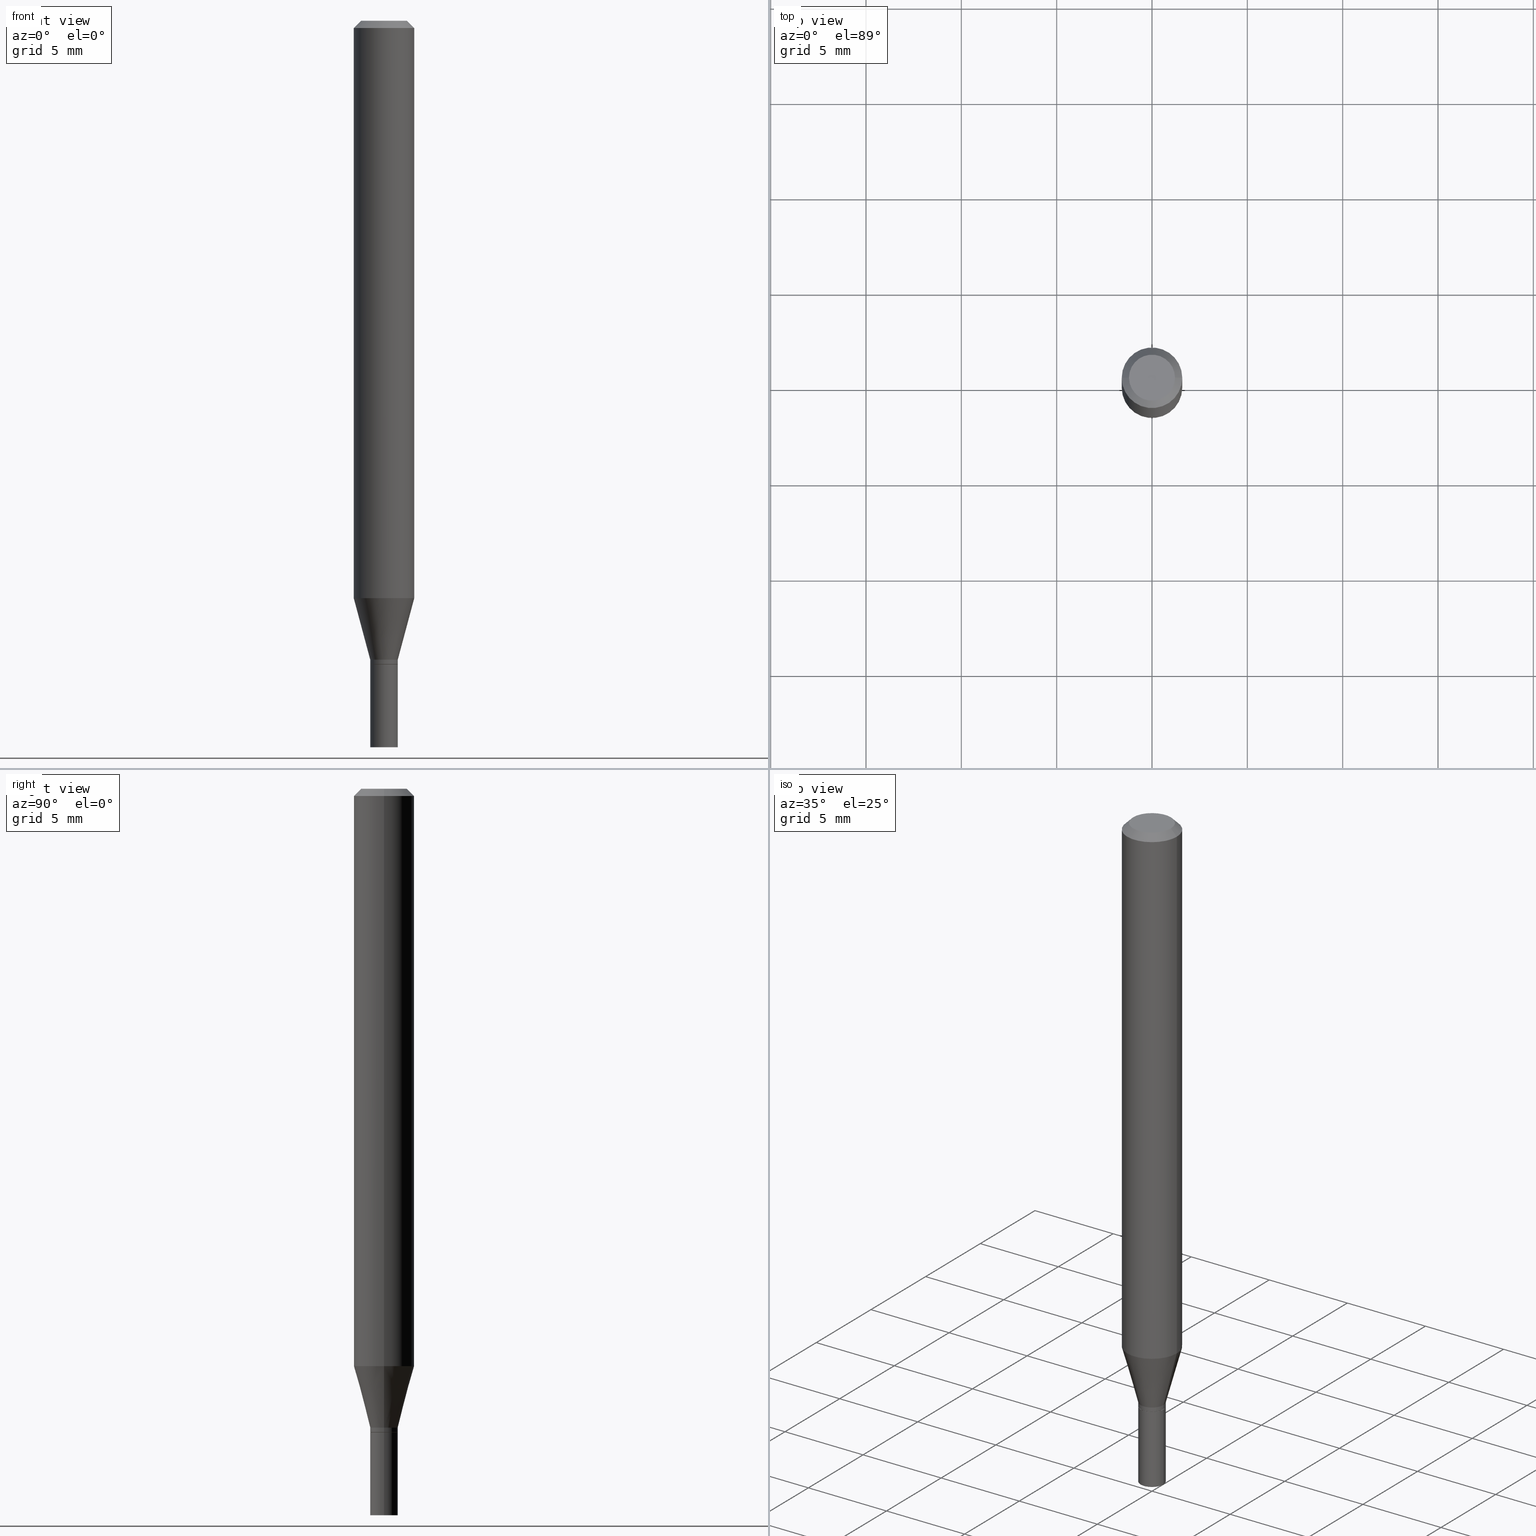
[diagram: canonical four-view strip — front | top / right | iso, engineering-drawing reading convention]
A machine part, canonical four-view strip (front | top / right | iso — engineering-drawing reading convention). The complete STEP part file that produces these views, byte-faithful:
ISO-10303-21;
HEADER;
FILE_DESCRIPTION (( 'STEP AP203' ),
    '1' );
FILE_NAME ('02452.STEP',
    '2024-03-18T20:40:53',
    ( '' ),
    ( '' ),
    'SwSTEP 2.0',
    'SolidWorks 2023',
    '' );
FILE_SCHEMA (( 'CONFIG_CONTROL_DESIGN' ));
ENDSEC;

DATA;
#1 = EDGE_LOOP ( 'NONE', ( #340, #38, #244, #93 ) ) ;
#2 = EDGE_LOOP ( 'NONE', ( #133, #55, #102, #368 ) ) ;
#3 = CYLINDRICAL_SURFACE ( 'NONE', #194, 0.06250000000000000000 ) ;
#4 = AXIS2_PLACEMENT_3D ( 'NONE', #408, #331, #13 ) ;
#5 = ADVANCED_FACE ( 'NONE', ( #286 ), #433, .T. ) ;
#6 = ORIENTED_EDGE ( 'NONE', *, *, #372, .T. ) ;
#7 = VERTEX_POINT ( 'NONE', #51 ) ;
#8 = FACE_OUTER_BOUND ( 'NONE', #108, .T. ) ;
#9 = LINE ( 'NONE', #118, #135 ) ;
#10 = COORDINATED_UNIVERSAL_TIME_OFFSET ( 5, 0, .BEHIND. ) ;
#11 = VECTOR ( 'NONE', #258, 39.37007874015748854 ) ;
#12 = CARTESIAN_POINT ( 'NONE',  ( 3.316907271900976096E-16, 0.04749999999999999362, -2.904368096790510281E-16 ) ) ;
#13 = DIRECTION ( 'NONE',  ( 1.000000000000000000, -6.982962677686265922E-15, 0.000000000000000000 ) ) ;
#14 = CARTESIAN_POINT ( 'NONE',  ( 3.668203209277705088E-31, -5.237222008264718399E-17, -0.01499999999999999944 ) ) ;
#15 = EDGE_CURVE ( 'NONE', #273, #69, #81, .T. ) ;
#16 = DIRECTION ( 'NONE',  ( 1.000000000000000000, -6.982962677686265922E-15, 4.876176775795935793E-29 ) ) ;
#17 = EDGE_LOOP ( 'NONE', ( #357, #143, #183, #400 ) ) ;
#18 = PERSON_AND_ORGANIZATION_ROLE ( 'design_supplier' ) ;
#19 = AXIS2_PLACEMENT_3D ( 'NONE', #334, #385, #307 ) ;
#20 = ORIENTED_EDGE ( 'NONE', *, *, #453, .F. ) ;
#21 = APPROVAL_STATUS ( 'not_yet_approved' ) ;
#22 = APPLICATION_PROTOCOL_DEFINITION ( 'international standard', 'config_control_design', 1994, #140 ) ;
#23 = DIRECTION ( 'NONE',  ( -2.445468806185136597E-29, 3.491481338843145583E-15, 1.000000000000000000 ) ) ;
#24 = APPLICATION_PROTOCOL_DEFINITION ( 'international standard', 'config_control_design', 1994, #63 ) ;
#25 = ORIENTED_EDGE ( 'NONE', *, *, #57, .T. ) ;
#26 = DIRECTION ( 'NONE',  ( -1.000000000000000000, 6.982962677686266711E-15, 0.000000000000000000 ) ) ;
#27 = DATE_AND_TIME ( #384, #367 ) ;
#28 = DIRECTION ( 'NONE',  ( 1.000000000000000000, -6.982962677686280910E-15, 0.000000000000000000 ) ) ;
#29 = VECTOR ( 'NONE', #168, 39.37007874015748143 ) ;
#30 = ORIENTED_EDGE ( 'NONE', *, *, #77, .T. ) ;
#31 = DIRECTION ( 'NONE',  ( 2.445468806185136597E-29, -3.491481338843145583E-15, -1.000000000000000000 ) ) ;
#32 = PERSON_AND_ORGANIZATION ( #42, #218 ) ;
#33 = ORIENTED_EDGE ( 'NONE', *, *, #313, .F. ) ;
#34 = DIRECTION ( 'NONE',  ( -2.445468806185136877E-29, 3.491481338843145188E-15, 1.000000000000000000 ) ) ;
#35 = ADVANCED_FACE ( 'NONE', ( #371 ), #425, .T. ) ;
#36 = EDGE_LOOP ( 'NONE', ( #64, #321, #68, #173 ) ) ;
#37 = CARTESIAN_POINT ( 'NONE',  ( 0.000000000000000000, 0.000000000000000000, 0.000000000000000000 ) ) ;
#38 = ORIENTED_EDGE ( 'NONE', *, *, #253, .T. ) ;
#39 = CIRCLE ( 'NONE', #225, 0.02850000000000000103 ) ;
#40 = EDGE_LOOP ( 'NONE', ( #381, #320, #145, #33 ) ) ;
#41 = DIRECTION ( 'NONE',  ( -2.445468806185136597E-29, 3.491481338843145583E-15, 1.000000000000000000 ) ) ;
#42 = PERSON ( 'UNSPECIFIED', 'UNSPECIFIED', 'UNSPECIFIED', ('UNSPECIFIED'), ('UNSPECIFIED'), ('UNSPECIFIED') ) ;
#43 = PLANE ( 'NONE',  #262 ) ;
#44 = APPROVAL_ROLE ( '' ) ;
#45 = DIRECTION ( 'NONE',  ( -2.445468806185136597E-29, 3.491481338843145583E-15, 1.000000000000000000 ) ) ;
#46 = CONICAL_SURFACE ( 'NONE', #328, 0.06250000000000000000, 0.7853981633974567167 ) ;
#47 = VECTOR ( 'NONE', #377, 39.37007874015748143 ) ;
#48 = DIRECTION ( 'NONE',  ( -2.445468806185136597E-29, 3.491481338843145583E-15, 1.000000000000000000 ) ) ;
#49 = ADVANCED_FACE ( 'NONE', ( #186 ), #411, .F. ) ;
#50 = CARTESIAN_POINT ( 'NONE',  ( -0.06250000000000000000, -3.718141560575843830E-15, -1.192110272542658223 ) ) ;
#51 = CARTESIAN_POINT ( 'NONE',  ( 0.02850000000000000103, -5.436236444578777472E-15, -1.500000000000000222 ) ) ;
#52 = AXIS2_PLACEMENT_3D ( 'NONE', #193, #414, #374 ) ;
#53 = DIRECTION ( 'NONE',  ( -2.445468806185136877E-29, 3.491481338843145188E-15, 1.000000000000000000 ) ) ;
#54 = CARTESIAN_POINT ( 'NONE',  ( 0.02799999999999999711, -4.835701654297756579E-15, -1.329000000000000181 ) ) ;
#55 = ORIENTED_EDGE ( 'NONE', *, *, #301, .T. ) ;
#56 = PERSON_AND_ORGANIZATION_ROLE ( 'creator' ) ;
#57 = EDGE_CURVE ( 'NONE', #251, #212, #412, .T. ) ;
#58 = AXIS2_PLACEMENT_3D ( 'NONE', #14, #224, #123 ) ;
#59 = CIRCLE ( 'NONE', #120, 0.02849999999999991776 ) ;
#60 = ORIENTED_EDGE ( 'NONE', *, *, #175, .F. ) ;
#61 = DIRECTION ( 'NONE',  ( 1.000000000000000000, -6.982962677686265922E-15, 4.876176775795935232E-29 ) ) ;
#62 = CARTESIAN_POINT ( 'NONE',  ( 3.250028043420046945E-29, -4.640178699322541079E-15, -1.329000000000000181 ) ) ;
#63 = APPLICATION_CONTEXT ( 'configuration controlled 3d designs of mechanical parts and assemblies' ) ;
#64 = ORIENTED_EDGE ( 'NONE', *, *, #267, .F. ) ;
#65 = CARTESIAN_POINT ( 'NONE',  ( 1.990144363140910964E-16, 0.02849999999999535891, -1.329000000000000181 ) ) ;
#66 = DIRECTION ( 'NONE',  ( -2.445468806185136597E-29, 3.491481338843145583E-15, 1.000000000000000000 ) ) ;
#67 = EDGE_CURVE ( 'NONE', #249, #426, #287, .T. ) ;
#68 = ORIENTED_EDGE ( 'NONE', *, *, #154, .T. ) ;
#69 = VERTEX_POINT ( 'NONE', #305 ) ;
#70 = CARTESIAN_POINT ( 'NONE',  ( 0.02849999999999991776, -4.804278322248167148E-15, -1.318999999999999950 ) ) ;
#71 = ORIENTED_EDGE ( 'NONE', *, *, #410, .F. ) ;
#72 = DIRECTION ( 'NONE',  ( -2.445468806185136597E-29, 3.491481338843145583E-15, 1.000000000000000000 ) ) ;
#73 = ORIENTED_EDGE ( 'NONE', *, *, #248, .T. ) ;
#74 = AXIS2_PLACEMENT_3D ( 'NONE', #152, #156, #78 ) ;
#75 = LENGTH_MEASURE_WITH_UNIT ( LENGTH_MEASURE( 0.02539999999999999897 ), #184 );
#76 = AXIS2_PLACEMENT_3D ( 'NONE', #99, #403, #147 ) ;
#77 = EDGE_CURVE ( 'NONE', #212, #251, #246, .T. ) ;
#78 = DIRECTION ( 'NONE',  ( 1.000000000000000000, -6.982962677686268288E-15, 0.000000000000000000 ) ) ;
#79 = DIRECTION ( 'NONE',  ( -2.445468806185136877E-29, 3.491481338843145188E-15, 1.000000000000000000 ) ) ;
#80 = FACE_OUTER_BOUND ( 'NONE', #17, .T. ) ;
#81 = CIRCLE ( 'NONE', #52, 0.02850000000000000103 ) ;
#82 = AXIS2_PLACEMENT_3D ( 'NONE', #197, #91, #89 ) ;
#83 = CARTESIAN_POINT ( 'NONE',  ( 3.225573355358195400E-29, -4.605263885934108641E-15, -1.318999999999999950 ) ) ;
#84 = DIRECTION ( 'NONE',  ( -2.445468806185136597E-29, 3.491481338843145583E-15, 1.000000000000000000 ) ) ;
#85 = DATE_AND_TIME ( #300, #227 ) ;
#86 = AXIS2_PLACEMENT_3D ( 'NONE', #132, #72, #303 ) ;
#87 = AXIS2_PLACEMENT_3D ( 'NONE', #424, #369, #463 ) ;
#88 = PRODUCT_RELATED_PRODUCT_CATEGORY ( 'detail', '', ( #341 ) ) ;
#89 = DIRECTION ( 'NONE',  ( 1.000000000000000000, -6.982962677686267499E-15, 4.852736867747366768E-29 ) ) ;
#90 = ORIENTED_EDGE ( 'NONE', *, *, #214, .T. ) ;
#91 = DIRECTION ( 'NONE',  ( -2.445468806185136597E-29, 3.491481338843145583E-15, 1.000000000000000000 ) ) ;
#92 = EDGE_CURVE ( 'NONE', #324, #429, #293, .T. ) ;
#93 = ORIENTED_EDGE ( 'NONE', *, *, #375, .F. ) ;
#94 = PERSON_AND_ORGANIZATION ( #42, #218 ) ;
#95 = EDGE_CURVE ( 'NONE', #275, #397, #435, .T. ) ;
#96 = LOCAL_TIME ( 16, 40, 53.00000000000000000, #274 ) ;
#97 = DIRECTION ( 'NONE',  ( -2.445468806185136597E-29, 3.491481338843145583E-15, 1.000000000000000000 ) ) ;
#98 = ADVANCED_FACE ( 'NONE', ( #407 ), #208, .T. ) ;
#99 = CARTESIAN_POINT ( 'NONE',  ( 3.668203209277705088E-31, -5.237222008264718399E-17, -0.01499999999999999944 ) ) ;
#100 = CARTESIAN_POINT ( 'NONE',  ( -0.02850000000000000103, 2.025046796916285603E-16, -1.401896500722648086E-30 ) ) ;
#101 = DIRECTION ( 'NONE',  ( 1.000000000000000000, -6.982962677686264344E-15, 0.000000000000000000 ) ) ;
#102 = ORIENTED_EDGE ( 'NONE', *, *, #15, .F. ) ;
#103 = CARTESIAN_POINT ( 'NONE',  ( 3.225573355358195400E-29, -4.605263885934108641E-15, -1.318999999999999950 ) ) ;
#104 = ADVANCED_FACE ( 'NONE', ( #80 ), #46, .T. ) ;
#105 = VECTOR ( 'NONE', #204, 39.37007874015748143 ) ;
#106 = CARTESIAN_POINT ( 'NONE',  ( 0.000000000000000000, 0.000000000000000000, 0.000000000000000000 ) ) ;
#107 = LINE ( 'NONE', #242, #105 ) ;
#108 = EDGE_LOOP ( 'NONE', ( #343, #290, #131, #139 ) ) ;
#109 = EDGE_LOOP ( 'NONE', ( #423, #317 ) ) ;
#110 = SHAPE_DEFINITION_REPRESENTATION ( #122, #222 ) ;
#111 = DIRECTION ( 'NONE',  ( 1.000000000000000000, -6.982962677686264344E-15, 0.000000000000000000 ) ) ;
#112 = ADVANCED_FACE ( 'NONE', ( #370 ), #43, .F. ) ;
#113 = ORIENTED_EDGE ( 'NONE', *, *, #313, .T. ) ;
#114 = CONICAL_SURFACE ( 'NONE', #373, 0.06250000000000000000, 0.7853981633974567167 ) ;
#115 = FACE_OUTER_BOUND ( 'NONE', #1, .T. ) ;
#116 = LINE ( 'NONE', #376, #11 ) ;
#117 = CARTESIAN_POINT ( 'NONE',  ( 0.06250000000000000000, -4.888073874380388472E-16, -0.01499999999999999944 ) ) ;
#118 = CARTESIAN_POINT ( 'NONE',  ( -0.06250000000000000000, 3.840629472727444916E-16, -0.01499999999999999944 ) ) ;
#119 = VECTOR ( 'NONE', #79, 39.37007874015748143 ) ;
#120 = AXIS2_PLACEMENT_3D ( 'NONE', #103, #245, #174 ) ;
#121 = DIRECTION ( 'NONE',  ( 0.7071067811865656694, -2.468850131082446387E-15, 0.7071067811865294761 ) ) ;
#122 = PRODUCT_DEFINITION_SHAPE ( 'NONE', 'NONE',  #417 ) ;
#123 = DIRECTION ( 'NONE',  ( 1.000000000000000000, -6.982962677686266711E-15, 0.000000000000000000 ) ) ;
#124 = CARTESIAN_POINT ( 'NONE',  ( 3.250028043420046945E-29, -4.640178699322541079E-15, -1.329000000000000181 ) ) ;
#125 = LINE ( 'NONE', #157, #315 ) ;
#126 = FACE_OUTER_BOUND ( 'NONE', #109, .T. ) ;
#127 = AXIS2_PLACEMENT_3D ( 'NONE', #388, #23, #136 ) ;
#128 = CC_DESIGN_SECURITY_CLASSIFICATION ( #405, ( #309 ) ) ;
#129 = ORIENTED_EDGE ( 'NONE', *, *, #410, .T. ) ;
#130 = DATE_AND_TIME ( #200, #180 ) ;
#131 = ORIENTED_EDGE ( 'NONE', *, *, #375, .T. ) ;
#132 = CARTESIAN_POINT ( 'NONE',  ( 0.000000000000000000, 0.000000000000000000, 0.000000000000000000 ) ) ;
#133 = ORIENTED_EDGE ( 'NONE', *, *, #442, .T. ) ;
#134 = PERSON_AND_ORGANIZATION_ROLE ( 'classification_officer' ) ;
#135 = VECTOR ( 'NONE', #261, 39.37007874015748143 ) ;
#136 = DIRECTION ( 'NONE',  ( 1.000000000000000000, -6.982962677686265922E-15, 0.000000000000000000 ) ) ;
#137 = VERTEX_POINT ( 'NONE', #445 ) ;
#138 = DIRECTION ( 'NONE',  ( -2.445468806185136597E-29, 3.491481338843145583E-15, 1.000000000000000000 ) ) ;
#139 = ORIENTED_EDGE ( 'NONE', *, *, #298, .F. ) ;
#140 = APPLICATION_CONTEXT ( 'configuration controlled 3d designs of mechanical parts and assemblies' ) ;
#141 = EDGE_CURVE ( 'NONE', #146, #431, #179, .T. ) ;
#142 = AXIS2_PLACEMENT_3D ( 'NONE', #276, #360, #203 ) ;
#143 = ORIENTED_EDGE ( 'NONE', *, *, #267, .T. ) ;
#144 = LINE ( 'NONE', #289, #380 ) ;
#145 = ORIENTED_EDGE ( 'NONE', *, *, #57, .F. ) ;
#146 = VERTEX_POINT ( 'NONE', #117 ) ;
#147 = DIRECTION ( 'NONE',  ( 1.000000000000000000, -6.982962677686266711E-15, 0.000000000000000000 ) ) ;
#148 = CARTESIAN_POINT ( 'NONE',  ( 3.225573355358195400E-29, -4.605263885934108641E-15, -1.318999999999999950 ) ) ;
#149 = AXIS2_PLACEMENT_3D ( 'NONE', #37, #211, #311 ) ;
#150 = AXIS2_PLACEMENT_3D ( 'NONE', #339, #454, #161 ) ;
#151 = APPROVAL_DATE_TIME ( #85, #230 ) ;
#152 = CARTESIAN_POINT ( 'NONE',  ( 3.225573355358195400E-29, -4.605263885934108641E-15, -1.318999999999999950 ) ) ;
#153 = PERSON_AND_ORGANIZATION_ROLE ( 'creator' ) ;
#154 = EDGE_CURVE ( 'NONE', #429, #431, #9, .T. ) ;
#155 = DIRECTION ( 'NONE',  ( 1.000000000000000000, -6.982962677686270655E-15, 0.000000000000000000 ) ) ;
#156 = DIRECTION ( 'NONE',  ( -2.445468806185136597E-29, 3.491481338843145583E-15, 1.000000000000000000 ) ) ;
#157 = CARTESIAN_POINT ( 'NONE',  ( 0.06250000000000000000, -4.364351673553916694E-16, 3.047610484872459871E-30 ) ) ;
#158 = LOCAL_TIME ( 16, 40, 53.00000000000000000, #310 ) ;
#159 = CARTESIAN_POINT ( 'NONE',  ( 2.915268485035931806E-29, -4.162230770425907235E-15, -1.192110272542658223 ) ) ;
#160 = CC_DESIGN_DATE_AND_TIME_ASSIGNMENT ( #130, #355, ( #417 ) ) ;
#161 = DIRECTION ( 'NONE',  ( 1.000000000000000000, -6.982962677686264344E-15, 0.000000000000000000 ) ) ;
#162 = ORIENTED_EDGE ( 'NONE', *, *, #92, .T. ) ;
#163 = AXIS2_PLACEMENT_3D ( 'NONE', #83, #48, #260 ) ;
#164 = CC_DESIGN_APPROVAL ( #350, ( #405 ) ) ;
#165 = APPROVAL_ROLE ( '' ) ;
#166 = CARTESIAN_POINT ( 'NONE',  ( 0.02849999999999992470, -1.990144363140580629E-16, 1.389710381101837840E-30 ) ) ;
#167 = PERSON_AND_ORGANIZATION ( #42, #218 ) ;
#168 = DIRECTION ( 'NONE',  ( -2.445468806185136877E-29, 3.491481338843145188E-15, 1.000000000000000000 ) ) ;
#169 = ORIENTED_EDGE ( 'NONE', *, *, #342, .F. ) ;
#170 = ORIENTED_EDGE ( 'NONE', *, *, #141, .F. ) ;
#171 = FACE_OUTER_BOUND ( 'NONE', #36, .T. ) ;
#172 = CYLINDRICAL_SURFACE ( 'NONE', #87, 0.02850000000000000103 ) ;
#173 = ORIENTED_EDGE ( 'NONE', *, *, #453, .T. ) ;
#174 = DIRECTION ( 'NONE',  ( 1.000000000000000000, -6.982962677686268288E-15, 0.000000000000000000 ) ) ;
#175 = EDGE_CURVE ( 'NONE', #254, #137, #308, .T. ) ;
#176 = FACE_OUTER_BOUND ( 'NONE', #235, .T. ) ;
#177 = ORIENTED_EDGE ( 'NONE', *, *, #77, .F. ) ;
#178 = FACE_OUTER_BOUND ( 'NONE', #219, .T. ) ;
#179 = CIRCLE ( 'NONE', #58, 0.06250000000000000000 ) ;
#180 = LOCAL_TIME ( 16, 40, 53.00000000000000000, #202 ) ;
#181 = ORIENTED_EDGE ( 'NONE', *, *, #95, .F. ) ;
#182 = EDGE_CURVE ( 'NONE', #137, #212, #116, .T. ) ;
#183 = ORIENTED_EDGE ( 'NONE', *, *, #141, .T. ) ;
#184 =( LENGTH_UNIT ( ) NAMED_UNIT ( * ) SI_UNIT ( $, .METRE. ) );
#185 = CARTESIAN_POINT ( 'NONE',  ( 2.915268485035931806E-29, -4.162230770425907235E-15, -1.192110272542658223 ) ) ;
#186 = FACE_OUTER_BOUND ( 'NONE', #210, .T. ) ;
#187 = DESIGN_CONTEXT ( 'detailed design', #63, 'design' ) ;
#188 = CIRCLE ( 'NONE', #82, 0.04749999999999999362 ) ;
#189 = APPROVAL ( #389, 'UNSPECIFIED' ) ;
#190 = CARTESIAN_POINT ( 'NONE',  ( 3.250028043420046945E-29, -4.640178699322541079E-15, -1.329000000000000181 ) ) ;
#191 = DIRECTION ( 'NONE',  ( -2.445468806185136597E-29, 3.491481338843145583E-15, 1.000000000000000000 ) ) ;
#192 = PLANE ( 'NONE',  #19 ) ;
#193 = CARTESIAN_POINT ( 'NONE',  ( 3.250028043420046945E-29, -4.640178699322541079E-15, -1.329000000000000181 ) ) ;
#194 = AXIS2_PLACEMENT_3D ( 'NONE', #314, #138, #207 ) ;
#195 = APPROVAL_PERSON_ORGANIZATION ( #167, #350, #165 ) ;
#196 = AXIS2_PLACEMENT_3D ( 'NONE', #394, #66, #101 ) ;
#197 = CARTESIAN_POINT ( 'NONE',  ( 6.093689898318465335E-45, -8.700174179635472181E-31, -2.491828921680032634E-16 ) ) ;
#198 = CC_DESIGN_PERSON_AND_ORGANIZATION_ASSIGNMENT ( #409, #153, ( #417 ) ) ;
#199 = PERSON_AND_ORGANIZATION ( #42, #218 ) ;
#200 = CALENDAR_DATE ( 2024, 18, 3 ) ;
#201 = CARTESIAN_POINT ( 'NONE',  ( 0.06250000000000000000, -4.811533449433679005E-16, -0.01499999999999999944 ) ) ;
#202 = COORDINATED_UNIVERSAL_TIME_OFFSET ( 5, 0, .BEHIND. ) ;
#203 = DIRECTION ( 'NONE',  ( 1.000000000000000000, 0.000000000000000000, 0.000000000000000000 ) ) ;
#204 = DIRECTION ( 'NONE',  ( -0.7071067811865656694, 7.493145998870420424E-15, 0.7071067811865294761 ) ) ;
#205 = MECHANICAL_CONTEXT ( 'NONE', #140, 'mechanical' ) ;
#206 = EDGE_LOOP ( 'NONE', ( #6, #162 ) ) ;
#207 = DIRECTION ( 'NONE',  ( 1.000000000000000000, -6.982962677686266711E-15, 4.876176775795935793E-29 ) ) ;
#208 = CONICAL_SURFACE ( 'NONE', #74, 0.02849999999999991776, 0.2617993877991499074 ) ;
#209 =( NAMED_UNIT ( * ) SI_UNIT ( $, .STERADIAN. ) SOLID_ANGLE_UNIT ( ) );
#210 = EDGE_LOOP ( 'NONE', ( #181, #439 ) ) ;
#211 = DIRECTION ( 'NONE',  ( -2.445468806185136597E-29, 3.491481338843145583E-15, 1.000000000000000000 ) ) ;
#212 = VERTEX_POINT ( 'NONE', #50 ) ;
#213 = FACE_OUTER_BOUND ( 'NONE', #215, .T. ) ;
#214 = EDGE_CURVE ( 'NONE', #426, #137, #333, .T. ) ;
#215 = EDGE_LOOP ( 'NONE', ( #25, #464, #170, #436 ) ) ;
#216 = CC_DESIGN_DATE_AND_TIME_ASSIGNMENT ( #27, #344, ( #405 ) ) ;
#217 = AXIS2_PLACEMENT_3D ( 'NONE', #159, #45, #299 ) ;
#218 = ORGANIZATION ( 'UNSPECIFIED', 'UNSPECIFIED', '' ) ;
#219 = EDGE_LOOP ( 'NONE', ( #438, #361, #238, #169 ) ) ;
#220 = DIRECTION ( 'NONE',  ( -2.445468806185136597E-29, 3.491481338843145583E-15, 1.000000000000000000 ) ) ;
#221 = CARTESIAN_POINT ( 'NONE',  ( 3.668203209277705088E-31, -5.237222008264718399E-17, -0.01499999999999999944 ) ) ;
#222 = ADVANCED_BREP_SHAPE_REPRESENTATION ( '02452', ( #450, #456, #142 ), #359 ) ;
#223 = CC_DESIGN_PERSON_AND_ORGANIZATION_ASSIGNMENT ( #199, #18, ( #309 ) ) ;
#224 = DIRECTION ( 'NONE',  ( -2.445468806185136597E-29, 3.491481338843145583E-15, 1.000000000000000000 ) ) ;
#225 = AXIS2_PLACEMENT_3D ( 'NONE', #229, #378, #352 ) ;
#226 = EDGE_CURVE ( 'NONE', #257, #7, #39, .T. ) ;
#227 = LOCAL_TIME ( 16, 40, 53.00000000000000000, #10 ) ;
#228 = DIRECTION ( 'NONE',  ( 1.000000000000000000, -6.982962677686264344E-15, 0.000000000000000000 ) ) ;
#229 = CARTESIAN_POINT ( 'NONE',  ( 3.668203209277704895E-29, -5.237222008264718177E-15, -1.500000000000000222 ) ) ;
#230 = APPROVAL ( #241, 'UNSPECIFIED' ) ;
#231 = EDGE_CURVE ( 'NONE', #7, #273, #416, .T. ) ;
#232 = CARTESIAN_POINT ( 'NONE',  ( -0.06250000000000000000, 4.440892098500626162E-16, -3.074334431409316114E-30 ) ) ;
#233 = AXIS2_PLACEMENT_3D ( 'NONE', #148, #295, #440 ) ;
#234 = CARTESIAN_POINT ( 'NONE',  ( 0.02850000000000000103, -1.990144363140586052E-16, 1.389710381101841869E-30 ) ) ;
#235 = EDGE_LOOP ( 'NONE', ( #401, #90, #60, #387 ) ) ;
#236 = CALENDAR_DATE ( 2024, 18, 3 ) ;
#237 = ADVANCED_FACE ( 'NONE', ( #176 ), #452, .T. ) ;
#238 = ORIENTED_EDGE ( 'NONE', *, *, #404, .T. ) ;
#239 = CLOSED_SHELL ( 'NONE', ( #5, #346, #399, #332 ) ) ;
#240 = CARTESIAN_POINT ( 'NONE',  ( 3.668203209277704895E-29, -5.237222008264718177E-15, -1.500000000000000222 ) ) ;
#241 = APPROVAL_STATUS ( 'not_yet_approved' ) ;
#242 = CARTESIAN_POINT ( 'NONE',  ( -0.02799999999999999711, -4.441226733309713639E-15, -1.329000000000000181 ) ) ;
#243 = PERSON_AND_ORGANIZATION_ROLE ( 'design_owner' ) ;
#244 = ORIENTED_EDGE ( 'NONE', *, *, #67, .F. ) ;
#245 = DIRECTION ( 'NONE',  ( -2.445468806185136597E-29, 3.491481338843145583E-15, 1.000000000000000000 ) ) ;
#246 = CIRCLE ( 'NONE', #217, 0.06250000000000000000 ) ;
#247 = VECTOR ( 'NONE', #121, 39.37007874015748143 ) ;
#248 = EDGE_CURVE ( 'NONE', #251, #146, #125, .T. ) ;
#249 = VERTEX_POINT ( 'NONE', #250 ) ;
#250 = CARTESIAN_POINT ( 'NONE',  ( 0.02849999999999992470, -4.837447394967178082E-15, -1.328500000000000236 ) ) ;
#251 = VERTEX_POINT ( 'NONE', #434 ) ;
#252 = APPROVAL_DATE_TIME ( #466, #350 ) ;
#253 = EDGE_CURVE ( 'NONE', #397, #426, #107, .T. ) ;
#254 = VERTEX_POINT ( 'NONE', #70 ) ;
#255 = CARTESIAN_POINT ( 'NONE',  ( -0.06250000000000000000, -1.663212285404214738E-15, -0.01499999999999999944 ) ) ;
#256 = VECTOR ( 'NONE', #34, 39.37007874015748143 ) ;
#257 = VERTEX_POINT ( 'NONE', #462 ) ;
#258 = DIRECTION ( 'NONE',  ( -0.2588190451025211836, 5.211531920934547886E-15, 0.9659258262890679791 ) ) ;
#259 = ADVANCED_FACE ( 'NONE', ( #213 ), #277, .T. ) ;
#260 = DIRECTION ( 'NONE',  ( 1.000000000000000000, -6.982962677686268288E-15, 0.000000000000000000 ) ) ;
#261 = DIRECTION ( 'NONE',  ( -0.7071067811865534569, 2.468850131082318986E-15, -0.7071067811865415775 ) ) ;
#262 = AXIS2_PLACEMENT_3D ( 'NONE', #12, #327, #443 ) ;
#263 = ADVANCED_FACE ( 'NONE', ( #178 ), #427, .T. ) ;
#264 = CIRCLE ( 'NONE', #304, 0.02850000000000000103 ) ;
#265 = CARTESIAN_POINT ( 'NONE',  ( -0.02799999999999999711, -4.438577506135602438E-15, -1.329000000000000181 ) ) ;
#266 = CARTESIAN_POINT ( 'NONE',  ( 6.093689898318465335E-45, -8.700174179635472181E-31, -2.491828921680032634E-16 ) ) ;
#267 = EDGE_CURVE ( 'NONE', #324, #146, #354, .T. ) ;
#268 = LINE ( 'NONE', #232, #47 ) ;
#269 = DIRECTION ( 'NONE',  ( -2.445468806185136877E-29, 3.491481338843145188E-15, 1.000000000000000000 ) ) ;
#270 = CIRCLE ( 'NONE', #127, 0.02849999999999992470 ) ;
#271 = CIRCLE ( 'NONE', #76, 0.06250000000000000000 ) ;
#272 = ADVANCED_FACE ( 'NONE', ( #171 ), #114, .T. ) ;
#273 = VERTEX_POINT ( 'NONE', #430 ) ;
#274 = COORDINATED_UNIVERSAL_TIME_OFFSET ( 5, 0, .BEHIND. ) ;
#275 = VERTEX_POINT ( 'NONE', #362 ) ;
#276 = CARTESIAN_POINT ( 'NONE',  ( 0.000000000000000000, 0.000000000000000000, 0.000000000000000000 ) ) ;
#277 = CYLINDRICAL_SURFACE ( 'NONE', #149, 0.06250000000000000000 ) ;
#278 = AXIS2_PLACEMENT_3D ( 'NONE', #190, #451, #16 ) ;
#279 = AXIS2_PLACEMENT_3D ( 'NONE', #240, #347, #28 ) ;
#280 = DIRECTION ( 'NONE',  ( 1.000000000000000000, -6.982962677686280910E-15, 0.000000000000000000 ) ) ;
#281 = ORIENTED_EDGE ( 'NONE', *, *, #342, .T. ) ;
#282 = LINE ( 'NONE', #100, #256 ) ;
#283 = PERSON_AND_ORGANIZATION ( #42, #218 ) ;
#284 = ORIENTED_EDGE ( 'NONE', *, *, #226, .T. ) ;
#285 = DIRECTION ( 'NONE',  ( 2.438088387897960049E-29, -3.491481338843145188E-15, -1.000000000000000000 ) ) ;
#286 = FACE_OUTER_BOUND ( 'NONE', #2, .T. ) ;
#287 = CIRCLE ( 'NONE', #4, 0.02849999999999992470 ) ;
#288 = ORIENTED_EDGE ( 'NONE', *, *, #351, .F. ) ;
#289 = CARTESIAN_POINT ( 'NONE',  ( 0.02849999999999991776, -4.804278322248167148E-15, -1.318999999999999950 ) ) ;
#290 = ORIENTED_EDGE ( 'NONE', *, *, #391, .T. ) ;
#291 = UNCERTAINTY_MEASURE_WITH_UNIT (LENGTH_MEASURE( 1.000000000000000082E-05 ), #292, 'distance_accuracy_value', 'NONE');
#292 =( CONVERSION_BASED_UNIT ( 'INCH', #75 ) LENGTH_UNIT ( ) NAMED_UNIT ( #393 ) );
#293 = CIRCLE ( 'NONE', #446, 0.04749999999999999362 ) ;
#294 = CONICAL_SURFACE ( 'NONE', #345, 0.02799999999999999711, 0.7853981633974739252 ) ;
#295 = DIRECTION ( 'NONE',  ( -2.445468806185136597E-29, 3.491481338843145583E-15, 1.000000000000000000 ) ) ;
#296 = ADVANCED_FACE ( 'NONE', ( #322 ), #3, .T. ) ;
#297 = DIRECTION ( 'NONE',  ( -1.000000000000000000, 6.982962677686266711E-15, 0.000000000000000000 ) ) ;
#298 = EDGE_CURVE ( 'NONE', #426, #249, #270, .T. ) ;
#299 = DIRECTION ( 'NONE',  ( 1.000000000000000000, -6.982962677686270655E-15, 0.000000000000000000 ) ) ;
#300 = CALENDAR_DATE ( 2024, 18, 3 ) ;
#301 = EDGE_CURVE ( 'NONE', #257, #69, #282, .T. ) ;
#302 = DIRECTION ( 'NONE',  ( 2.445468806185136597E-29, -3.491481338843145583E-15, -1.000000000000000000 ) ) ;
#303 = DIRECTION ( 'NONE',  ( 1.000000000000000000, -6.982962677686265922E-15, 4.876176775795935232E-29 ) ) ;
#304 = AXIS2_PLACEMENT_3D ( 'NONE', #319, #220, #280 ) ;
#305 = CARTESIAN_POINT ( 'NONE',  ( -0.02850000000000000103, -4.736195674102000895E-15, -1.329000000000000181 ) ) ;
#306 = APPROVAL_DATE_TIME ( #349, #189 ) ;
#307 = DIRECTION ( 'NONE',  ( 1.000000000000000000, -6.982962677686265922E-15, 4.876176775795935793E-29 ) ) ;
#308 = CIRCLE ( 'NONE', #233, 0.02849999999999991776 ) ;
#309 = PRODUCT_DEFINITION_FORMATION_WITH_SPECIFIED_SOURCE ( 'ANY', '', #341, .NOT_KNOWN. ) ;
#310 = COORDINATED_UNIVERSAL_TIME_OFFSET ( 5, 0, .BEHIND. ) ;
#311 = DIRECTION ( 'NONE',  ( 1.000000000000000000, -6.982962677686266711E-15, 4.876176775795935793E-29 ) ) ;
#312 = CC_DESIGN_PERSON_AND_ORGANIZATION_ASSIGNMENT ( #461, #243, ( #341 ) ) ;
#313 = EDGE_CURVE ( 'NONE', #254, #251, #144, .T. ) ;
#314 = CARTESIAN_POINT ( 'NONE',  ( 0.000000000000000000, 0.000000000000000000, 0.000000000000000000 ) ) ;
#315 = VECTOR ( 'NONE', #53, 39.37007874015748143 ) ;
#316 = CARTESIAN_POINT ( 'NONE',  ( -0.02849999999999992470, -4.435928278961492815E-15, -1.328500000000000236 ) ) ;
#317 = ORIENTED_EDGE ( 'NONE', *, *, #226, .F. ) ;
#318 = CARTESIAN_POINT ( 'NONE',  ( 0.04749999999999999362, -4.035134999187582567E-16, -2.491828921680006996E-16 ) ) ;
#319 = CARTESIAN_POINT ( 'NONE',  ( 3.250028043420046945E-29, -4.640178699322541079E-15, -1.329000000000000181 ) ) ;
#320 = ORIENTED_EDGE ( 'NONE', *, *, #182, .T. ) ;
#321 = ORIENTED_EDGE ( 'NONE', *, *, #372, .F. ) ;
#322 = FACE_OUTER_BOUND ( 'NONE', #383, .T. ) ;
#323 = AXIS2_PLACEMENT_3D ( 'NONE', #65, #285, #432 ) ;
#324 = VERTEX_POINT ( 'NONE', #318 ) ;
#325 = EDGE_LOOP ( 'NONE', ( #458, #284, #365, #71 ) ) ;
#326 = LINE ( 'NONE', #166, #29 ) ;
#327 = DIRECTION ( 'NONE',  ( 2.438088387897960049E-29, -3.491481338843145188E-15, -1.000000000000000000 ) ) ;
#328 = AXIS2_PLACEMENT_3D ( 'NONE', #221, #302, #297 ) ;
#329 = APPROVAL_PERSON_ORGANIZATION ( #32, #230, #44 ) ;
#330 = DIRECTION ( 'NONE',  ( -2.445468806185136597E-29, 3.491481338843145583E-15, 1.000000000000000000 ) ) ;
#331 = DIRECTION ( 'NONE',  ( -2.445468806185136597E-29, 3.491481338843145583E-15, 1.000000000000000000 ) ) ;
#332 = ADVANCED_FACE ( 'NONE', ( #358 ), #395, .F. ) ;
#333 = LINE ( 'NONE', #415, #119 ) ;
#334 = CARTESIAN_POINT ( 'NONE',  ( 3.576687321579069994E-29, -5.368277968210015545E-15, -1.500000000000000222 ) ) ;
#335 = AXIS2_PLACEMENT_3D ( 'NONE', #465, #97, #61 ) ;
#336 = DIRECTION ( 'NONE',  ( 1.000000000000000000, -6.982962677686267499E-15, 4.852736867747366768E-29 ) ) ;
#337 = AXIS2_PLACEMENT_3D ( 'NONE', #124, #330, #228 ) ;
#338 = CIRCLE ( 'NONE', #279, 0.02850000000000000103 ) ;
#339 = CARTESIAN_POINT ( 'NONE',  ( 3.250028043420046945E-29, -4.640178699322541079E-15, -1.329000000000000181 ) ) ;
#340 = ORIENTED_EDGE ( 'NONE', *, *, #95, .T. ) ;
#341 = PRODUCT ( '02452', '02452', '', ( #205 ) ) ;
#342 = EDGE_CURVE ( 'NONE', #137, #254, #59, .T. ) ;
#343 = ORIENTED_EDGE ( 'NONE', *, *, #253, .F. ) ;
#344 = DATE_TIME_ROLE ( 'classification_date' ) ;
#345 = AXIS2_PLACEMENT_3D ( 'NONE', #62, #41, #111 ) ;
#346 = ADVANCED_FACE ( 'NONE', ( #126 ), #192, .F. ) ;
#347 = DIRECTION ( 'NONE',  ( -2.445468806185136597E-29, 3.491481338843145583E-15, 1.000000000000000000 ) ) ;
#348 = DIRECTION ( 'NONE',  ( 0.7071067811865534569, -7.319954787623276556E-15, -0.7071067811865415775 ) ) ;
#349 = DATE_AND_TIME ( #236, #96 ) ;
#350 = APPROVAL ( #21, 'UNSPECIFIED' ) ;
#351 = EDGE_CURVE ( 'NONE', #212, #431, #268, .T. ) ;
#352 = DIRECTION ( 'NONE',  ( 1.000000000000000000, -6.982962677686280910E-15, 0.000000000000000000 ) ) ;
#353 = EDGE_LOOP ( 'NONE', ( #457, #281, #113, #177 ) ) ;
#354 = LINE ( 'NONE', #201, #366 ) ;
#355 = DATE_TIME_ROLE ( 'creation_date' ) ;
#356 = CARTESIAN_POINT ( 'NONE',  ( -0.04749999999999999362, 3.578768372314206562E-16, -2.491828921680056300E-16 ) ) ;
#357 = ORIENTED_EDGE ( 'NONE', *, *, #92, .F. ) ;
#358 = FACE_OUTER_BOUND ( 'NONE', #421, .T. ) ;
#359 =( GEOMETRIC_REPRESENTATION_CONTEXT ( 3 ) GLOBAL_UNCERTAINTY_ASSIGNED_CONTEXT ( ( #291 ) ) GLOBAL_UNIT_ASSIGNED_CONTEXT ( ( #292, #392, #209 ) ) REPRESENTATION_CONTEXT ( 'NONE', 'WORKASPACE' ) );
#360 = DIRECTION ( 'NONE',  ( 0.000000000000000000, 0.000000000000000000, 1.000000000000000000 ) ) ;
#361 = ORIENTED_EDGE ( 'NONE', *, *, #298, .T. ) ;
#362 = CARTESIAN_POINT ( 'NONE',  ( 0.02799999999999999711, -4.835701654297756579E-15, -1.329000000000000181 ) ) ;
#363 = DIRECTION ( 'NONE',  ( -2.445468806185136597E-29, 3.491481338843145583E-15, 1.000000000000000000 ) ) ;
#364 = CARTESIAN_POINT ( 'NONE',  ( 3.668203209277705088E-31, -5.237222008264718399E-17, -0.01499999999999999944 ) ) ;
#365 = ORIENTED_EDGE ( 'NONE', *, *, #231, .T. ) ;
#366 = VECTOR ( 'NONE', #348, 39.37007874015748143 ) ;
#367 = LOCAL_TIME ( 16, 40, 53.00000000000000000, #428 ) ;
#368 = ORIENTED_EDGE ( 'NONE', *, *, #231, .F. ) ;
#369 = DIRECTION ( 'NONE',  ( -2.445468806185136597E-29, 3.491481338843145583E-15, 1.000000000000000000 ) ) ;
#370 = FACE_OUTER_BOUND ( 'NONE', #206, .T. ) ;
#371 = FACE_OUTER_BOUND ( 'NONE', #40, .T. ) ;
#372 = EDGE_CURVE ( 'NONE', #429, #324, #188, .T. ) ;
#373 = AXIS2_PLACEMENT_3D ( 'NONE', #364, #31, #26 ) ;
#374 = DIRECTION ( 'NONE',  ( 1.000000000000000000, -6.982962677686280910E-15, 0.000000000000000000 ) ) ;
#375 = EDGE_CURVE ( 'NONE', #275, #249, #447, .T. ) ;
#376 = CARTESIAN_POINT ( 'NONE',  ( -0.02849999999999991776, -4.402759206242480303E-15, -1.318999999999999950 ) ) ;
#377 = DIRECTION ( 'NONE',  ( -2.445468806185136877E-29, 3.491481338843145188E-15, 1.000000000000000000 ) ) ;
#378 = DIRECTION ( 'NONE',  ( -2.445468806185136597E-29, 3.491481338843145583E-15, 1.000000000000000000 ) ) ;
#379 = CC_DESIGN_PERSON_AND_ORGANIZATION_ASSIGNMENT ( #382, #56, ( #309 ) ) ;
#380 = VECTOR ( 'NONE', #437, 39.37007874015748854 ) ;
#381 = ORIENTED_EDGE ( 'NONE', *, *, #175, .T. ) ;
#382 = PERSON_AND_ORGANIZATION ( #42, #218 ) ;
#383 = EDGE_LOOP ( 'NONE', ( #288, #30, #73, #20 ) ) ;
#384 = CALENDAR_DATE ( 2024, 18, 3 ) ;
#385 = DIRECTION ( 'NONE',  ( -2.438088387897960049E-29, 3.491481338843145188E-15, 1.000000000000000000 ) ) ;
#386 = VECTOR ( 'NONE', #269, 39.37007874015748143 ) ;
#387 = ORIENTED_EDGE ( 'NONE', *, *, #404, .F. ) ;
#388 = CARTESIAN_POINT ( 'NONE',  ( 3.248805309016954704E-29, -4.638432958653120365E-15, -1.328500000000000236 ) ) ;
#389 = APPROVAL_STATUS ( 'not_yet_approved' ) ;
#390 = CC_DESIGN_APPROVAL ( #230, ( #417 ) ) ;
#391 = EDGE_CURVE ( 'NONE', #397, #275, #406, .T. ) ;
#392 =( NAMED_UNIT ( * ) PLANE_ANGLE_UNIT ( ) SI_UNIT ( $, .RADIAN. ) );
#393 = DIMENSIONAL_EXPONENTS ( 1.000000000000000000, 0.000000000000000000, 0.000000000000000000, 0.000000000000000000, 0.000000000000000000, 0.000000000000000000, 0.000000000000000000 ) ;
#394 = CARTESIAN_POINT ( 'NONE',  ( 3.250028043420046945E-29, -4.640178699322541079E-15, -1.329000000000000181 ) ) ;
#395 = PLANE ( 'NONE',  #323 ) ;
#396 = FACE_OUTER_BOUND ( 'NONE', #325, .T. ) ;
#397 = VERTEX_POINT ( 'NONE', #265 ) ;
#398 = CLOSED_SHELL ( 'NONE', ( #237, #420, #104, #259, #35, #98, #296, #272, #112, #49, #444, #263 ) ) ;
#399 = ADVANCED_FACE ( 'NONE', ( #396 ), #172, .T. ) ;
#400 = ORIENTED_EDGE ( 'NONE', *, *, #154, .F. ) ;
#401 = ORIENTED_EDGE ( 'NONE', *, *, #67, .T. ) ;
#402 = ORIENTED_EDGE ( 'NONE', *, *, #15, .T. ) ;
#403 = DIRECTION ( 'NONE',  ( -2.445468806185136597E-29, 3.491481338843145583E-15, 1.000000000000000000 ) ) ;
#404 = EDGE_CURVE ( 'NONE', #249, #254, #326, .T. ) ;
#405 = SECURITY_CLASSIFICATION ( '', '', #422 ) ;
#406 = CIRCLE ( 'NONE', #150, 0.02799999999999999711 ) ;
#407 = FACE_OUTER_BOUND ( 'NONE', #353, .T. ) ;
#408 = CARTESIAN_POINT ( 'NONE',  ( 3.248805309016954704E-29, -4.638432958653120365E-15, -1.328500000000000236 ) ) ;
#409 = PERSON_AND_ORGANIZATION ( #42, #218 ) ;
#410 = EDGE_CURVE ( 'NONE', #69, #273, #264, .T. ) ;
#411 = PLANE ( 'NONE',  #278 ) ;
#412 = CIRCLE ( 'NONE', #418, 0.06250000000000000000 ) ;
#413 = APPROVAL_PERSON_ORGANIZATION ( #283, #189, #460 ) ;
#414 = DIRECTION ( 'NONE',  ( -2.445468806185136597E-29, 3.491481338843145583E-15, 1.000000000000000000 ) ) ;
#415 = CARTESIAN_POINT ( 'NONE',  ( -0.02849999999999992470, 2.025046796916280179E-16, -1.401896500722644233E-30 ) ) ;
#416 = LINE ( 'NONE', #234, #386 ) ;
#417 = PRODUCT_DEFINITION ( 'UNKNOWN', '', #309, #187 ) ;
#418 = AXIS2_PLACEMENT_3D ( 'NONE', #185, #191, #155 ) ;
#419 = CONICAL_SURFACE ( 'NONE', #196, 0.02799999999999999711, 0.7853981633974739252 ) ;
#420 = ADVANCED_FACE ( 'NONE', ( #115 ), #294, .T. ) ;
#421 = EDGE_LOOP ( 'NONE', ( #402, #129 ) ) ;
#422 = SECURITY_CLASSIFICATION_LEVEL ( 'unclassified' ) ;
#423 = ORIENTED_EDGE ( 'NONE', *, *, #442, .F. ) ;
#424 = CARTESIAN_POINT ( 'NONE',  ( 0.000000000000000000, 0.000000000000000000, 0.000000000000000000 ) ) ;
#425 = CONICAL_SURFACE ( 'NONE', #163, 0.02849999999999991776, 0.2617993877991499074 ) ;
#426 = VERTEX_POINT ( 'NONE', #316 ) ;
#427 = CYLINDRICAL_SURFACE ( 'NONE', #335, 0.02849999999999992470 ) ;
#428 = COORDINATED_UNIVERSAL_TIME_OFFSET ( 5, 0, .BEHIND. ) ;
#429 = VERTEX_POINT ( 'NONE', #356 ) ;
#430 = CARTESIAN_POINT ( 'NONE',  ( 0.02850000000000000103, -4.839193135636600375E-15, -1.329000000000000181 ) ) ;
#431 = VERTEX_POINT ( 'NONE', #255 ) ;
#432 = DIRECTION ( 'NONE',  ( -1.000000000000000000, 6.982962677686265922E-15, -4.876176775795935793E-29 ) ) ;
#433 = CYLINDRICAL_SURFACE ( 'NONE', #455, 0.02850000000000000103 ) ;
#434 = CARTESIAN_POINT ( 'NONE',  ( 0.06250000000000000000, -4.598665937781298116E-15, -1.192110272542658223 ) ) ;
#435 = CIRCLE ( 'NONE', #337, 0.02799999999999999711 ) ;
#436 = ORIENTED_EDGE ( 'NONE', *, *, #248, .F. ) ;
#437 = DIRECTION ( 'NONE',  ( 0.2588190451025211836, 1.565188264969622559E-15, 0.9659258262890679791 ) ) ;
#438 = ORIENTED_EDGE ( 'NONE', *, *, #214, .F. ) ;
#439 = ORIENTED_EDGE ( 'NONE', *, *, #391, .F. ) ;
#440 = DIRECTION ( 'NONE',  ( 1.000000000000000000, -6.982962677686268288E-15, 0.000000000000000000 ) ) ;
#441 = CC_DESIGN_PERSON_AND_ORGANIZATION_ASSIGNMENT ( #94, #134, ( #405 ) ) ;
#442 = EDGE_CURVE ( 'NONE', #7, #257, #338, .T. ) ;
#443 = DIRECTION ( 'NONE',  ( -1.000000000000000000, 6.982962677686265922E-15, -4.876176775795935793E-29 ) ) ;
#444 = ADVANCED_FACE ( 'NONE', ( #8 ), #419, .T. ) ;
#445 = CARTESIAN_POINT ( 'NONE',  ( -0.02849999999999991776, -4.060450383409162461E-15, -1.318999999999999950 ) ) ;
#446 = AXIS2_PLACEMENT_3D ( 'NONE', #266, #84, #336 ) ;
#447 = LINE ( 'NONE', #54, #247 ) ;
#448 = CC_DESIGN_APPROVAL ( #189, ( #309 ) ) ;
#449 = DIRECTION ( 'NONE',  ( 1.000000000000000000, -6.982962677686266711E-15, 4.876176775795936353E-29 ) ) ;
#450 = MANIFOLD_SOLID_BREP ( 'Body-Move/Copy2[1]', #239 ) ;
#451 = DIRECTION ( 'NONE',  ( -2.438088387897960049E-29, 3.491481338843145188E-15, 1.000000000000000000 ) ) ;
#452 = CYLINDRICAL_SURFACE ( 'NONE', #86, 0.02849999999999992470 ) ;
#453 = EDGE_CURVE ( 'NONE', #431, #146, #271, .T. ) ;
#454 = DIRECTION ( 'NONE',  ( -2.445468806185136597E-29, 3.491481338843145583E-15, 1.000000000000000000 ) ) ;
#455 = AXIS2_PLACEMENT_3D ( 'NONE', #106, #363, #449 ) ;
#456 = MANIFOLD_SOLID_BREP ( 'Body-Move/Copy2[2]', #398 ) ;
#457 = ORIENTED_EDGE ( 'NONE', *, *, #182, .F. ) ;
#458 = ORIENTED_EDGE ( 'NONE', *, *, #301, .F. ) ;
#459 = CALENDAR_DATE ( 2024, 18, 3 ) ;
#460 = APPROVAL_ROLE ( '' ) ;
#461 = PERSON_AND_ORGANIZATION ( #42, #218 ) ;
#462 = CARTESIAN_POINT ( 'NONE',  ( -0.02850000000000000103, -4.736195674102000895E-15, -1.500000000000000222 ) ) ;
#463 = DIRECTION ( 'NONE',  ( 1.000000000000000000, -6.982962677686266711E-15, 4.876176775795936353E-29 ) ) ;
#464 = ORIENTED_EDGE ( 'NONE', *, *, #351, .T. ) ;
#465 = CARTESIAN_POINT ( 'NONE',  ( 0.000000000000000000, 0.000000000000000000, 0.000000000000000000 ) ) ;
#466 = DATE_AND_TIME ( #459, #158 ) ;
ENDSEC;
END-ISO-10303-21;
